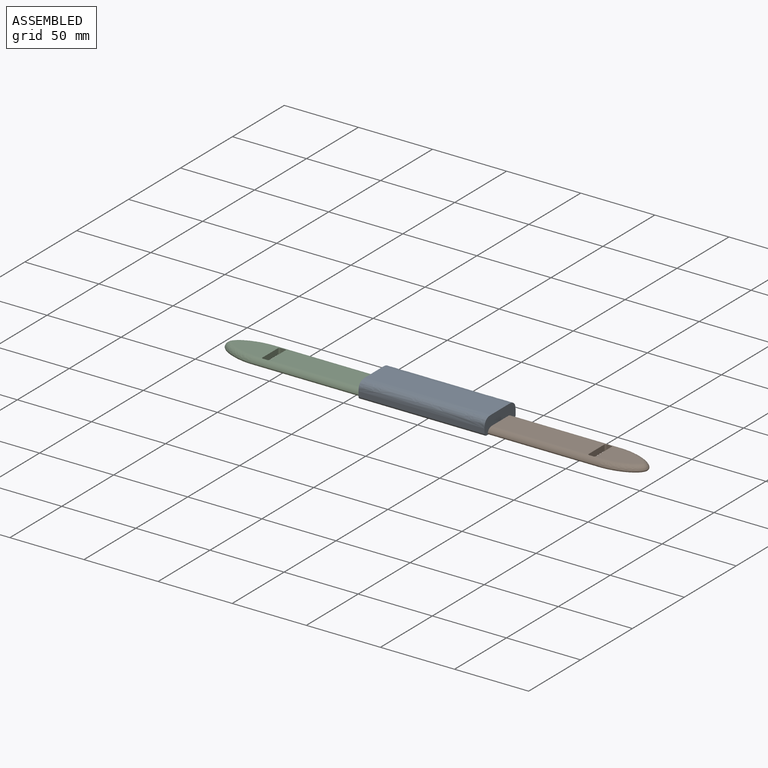
[diagram: assembled view]
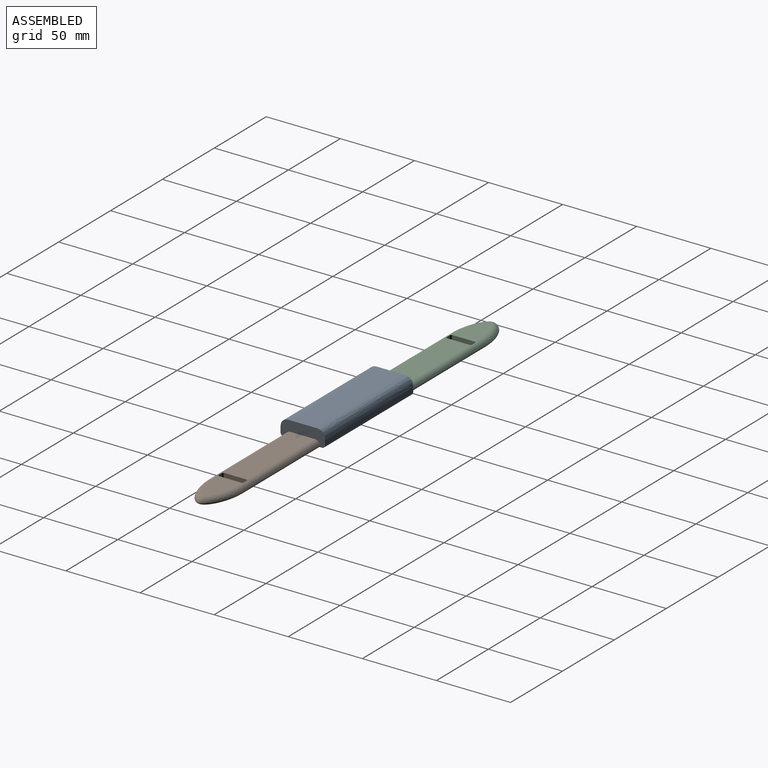
[diagram: assembled view, second angle]
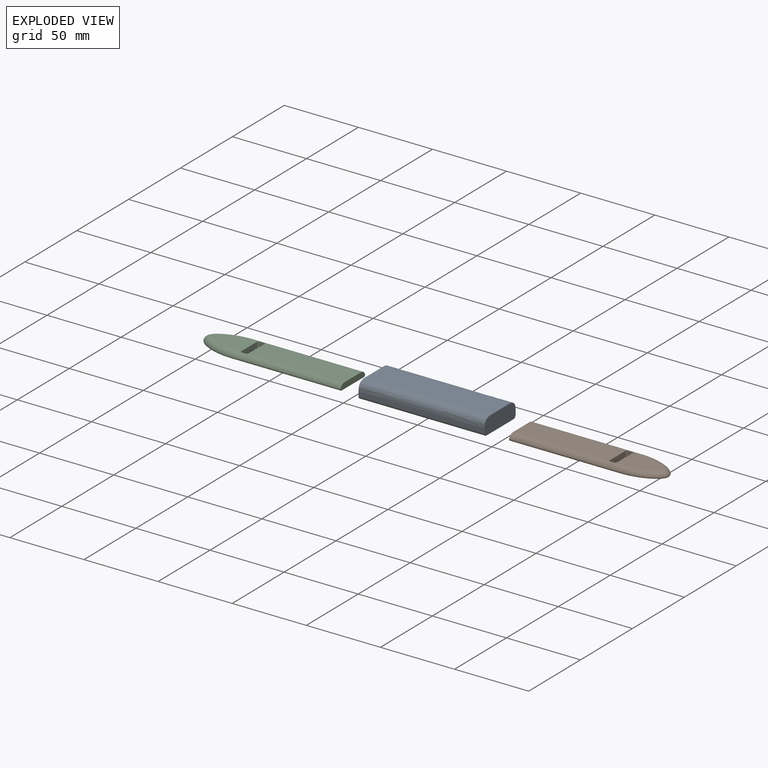
[diagram: exploded view]
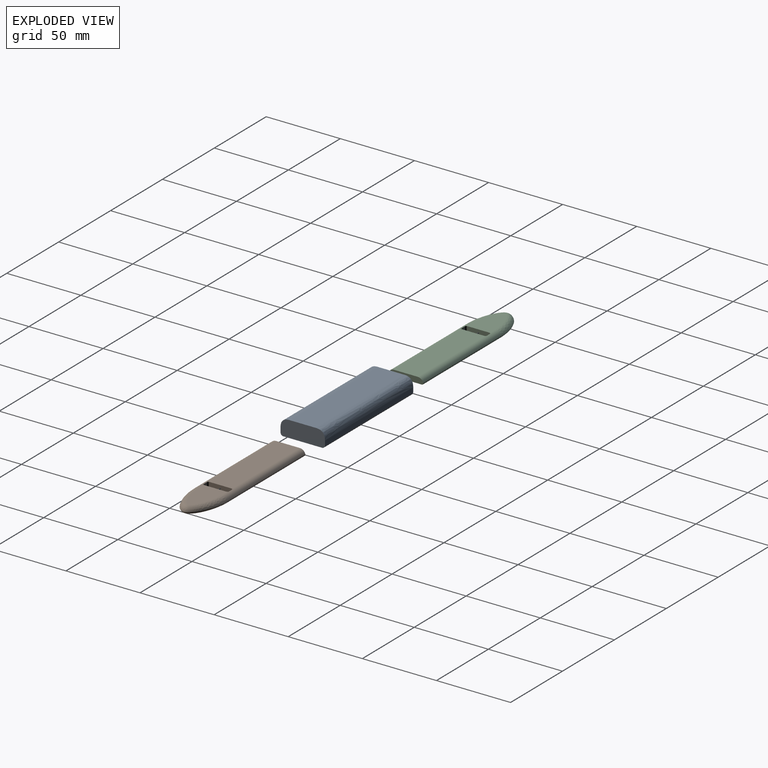
[diagram: exploded view, second angle]
ASSEMBLY  parts=3 mates=2
PART A: 10 faces, bbox 93.5x30x11 mm
  f0: plane 85x3mm, normal (0,1,0), area 255mm2, adj f1,f3,f7,f9
  f1: plane 30x11mm, normal (-1,0,0), area 316.3mm2, adj f0,f2,f4,f5,f6,f7,f8,f9
  f2: plane 85x3mm, normal (0,-1,0), area 255mm2, adj f1,f3,f6,f8
  f3: plane 30x11mm, normal (1,0,0), area 316.3mm2, adj f0,f2,f4,f5,f6,f7,f8,f9
  f4: plane 85x18mm, normal (0,0,1), area 1530mm2, adj f1,f3,f6,f7
  f5: plane 85x26mm, normal (0,0,-1), area 2210mm2, adj f1,f3,f8,f9
  f6: bspline ~93.5x6mm, area 827.8mm2, adj f1,f2,f3,f4
  f7: bspline ~93.5x6mm, area 827.8mm2, adj f0,f1,f3,f4
  f8: cylinder r=2mm len=85mm, axis (1,0,0), area 267mm2, adj f1,f2,f3,f5
  f9: cylinder r=2mm len=85mm, axis (-1,0,0), area 267mm2, adj f0,f1,f3,f5
PART B: 23 faces, bbox 100.3x24.5x4 mm
  f0: plane 65.16x16mm, normal (0,0,1), area 1040mm2, adj f1,f4,f8,f10,f19,f20
  f1: plane 15x4mm, normal (1,0,0), area 60mm2, adj f0,f7,f19,f20
  f2: plane 3.96x3mm, normal (0,-1,0), area 11.9mm2, adj f7,f10,f20,f21
  f3: plane 15x4mm, normal (-1,0,0), area 60mm2, adj f6,f7,f21,f22
  f4: plane 23.66x4mm, normal (-1,0,0), area 88.4mm2, adj f0,f7,f8,f10,f11,f13
  f5: plane 3.97x3mm, normal (0,1,0), area 11.9mm2, adj f7,f8,f19,f22
  f6: plane 26.17x16.01mm, normal (0,0,1), area 322.2mm2, adj f3,f8,f9,f10,f21,f22
  f7: plane 98.84x21.67mm, normal (0,0,-1), area 1247.2mm2, adj f1,f2,f3,f4,f5,f11,f12,f13
  f8: cylinder r=4mm len=75mm, axis (-1,0,0), area 367.5mm2, adj f0,f4,f5,f6,f9,f11,f19,f22
  f9: bspline ~34.09x24.04mm, area 258.2mm2, adj f6,f8,f10,f12
  f10: cylinder r=4mm len=75mm, axis (1,0,0), area 367.1mm2, adj f0,f2,f4,f6,f9,f13,f20,f21
  f11: cylinder r=1mm len=75mm, axis (-1,0,0), area 143.3mm2, adj f4,f7,f8,f12
  f12: bspline ~41.26x24.55mm, area 110.2mm2, adj f7,f9,f11,f13
  f13: cylinder r=1mm len=75mm, axis (1,0,0), area 143.3mm2, adj f4,f7,f10,f12
  f14: plane 40x1mm, normal (0,-1,0), area 40mm2, adj f7,f15,f17,f18
  f15: plane 17x1mm, normal (1,0,0), area 17mm2, adj f7,f14,f16,f18
  f16: plane 40x1mm, normal (0,1,0), area 40mm2, adj f7,f15,f17,f18
  f17: plane 17x1mm, normal (-1,0,0), area 17mm2, adj f7,f14,f16,f18
  f18: plane 40x17mm, normal (0,0,-1), area 680mm2, adj f14,f15,f16,f17
  f19: cylinder r=1mm len=4mm, axis (0,0,1), area 6.3mm2, adj f0,f1,f5,f7,f8
  f20: cylinder r=1mm len=4mm, axis (0,0,-1), area 6.3mm2, adj f0,f1,f2,f7,f10
  f21: cylinder r=1mm len=4mm, axis (0,0,1), area 6.3mm2, adj f2,f3,f6,f7,f10
  f22: cylinder r=1mm len=4mm, axis (0,0,-1), area 6.3mm2, adj f3,f5,f6,f7,f8
PART C: same geometry as B
PLACE A rot(axis=(0,0,1),0deg) t=(63.63,17.36,56.55)mm
PLACE B rot(axis=(0,0,1),0deg) t=(151.51,7.91,56.55)mm
PLACE C rot(axis=(0,0,1),180deg) t=(-47.49,23.94,56.55)mm
MATE planar A.f1 <-> C.f4  axis (-1,0,0) through (9.51,15.92,56.55)mm
MATE planar B.f4 <-> A.f3  axis (-1,0,0) through (94.51,15.92,56.55)mm
